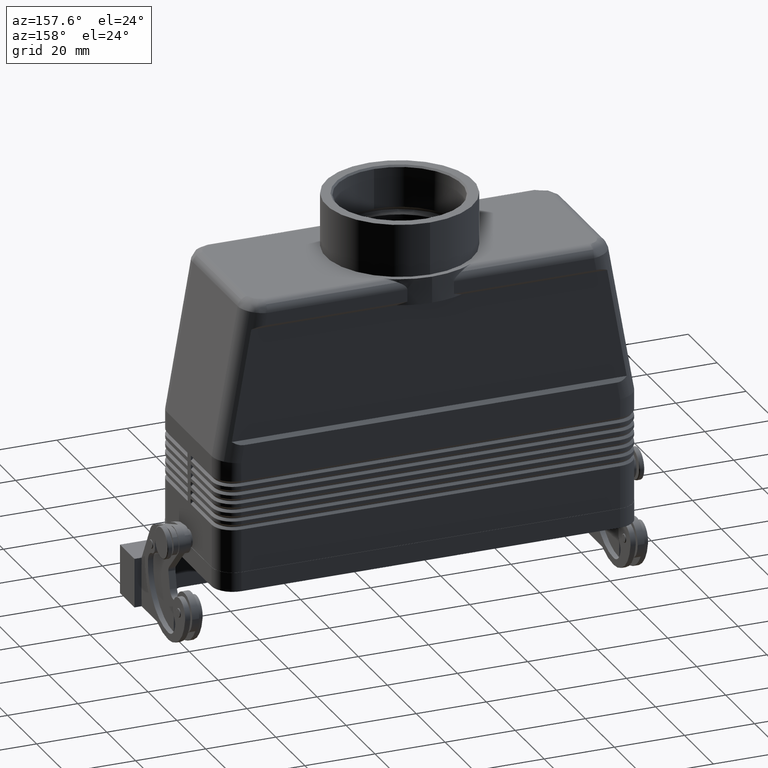
[diagram: clean part render]
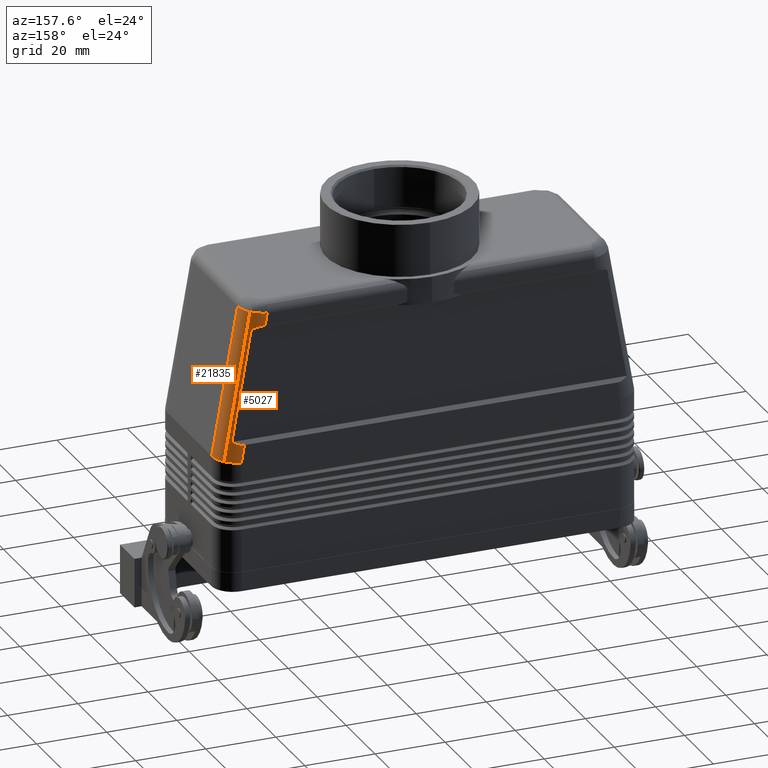
[diagram: same view with one multi-face feature highlighted, each face labeled with its STEP entity id]
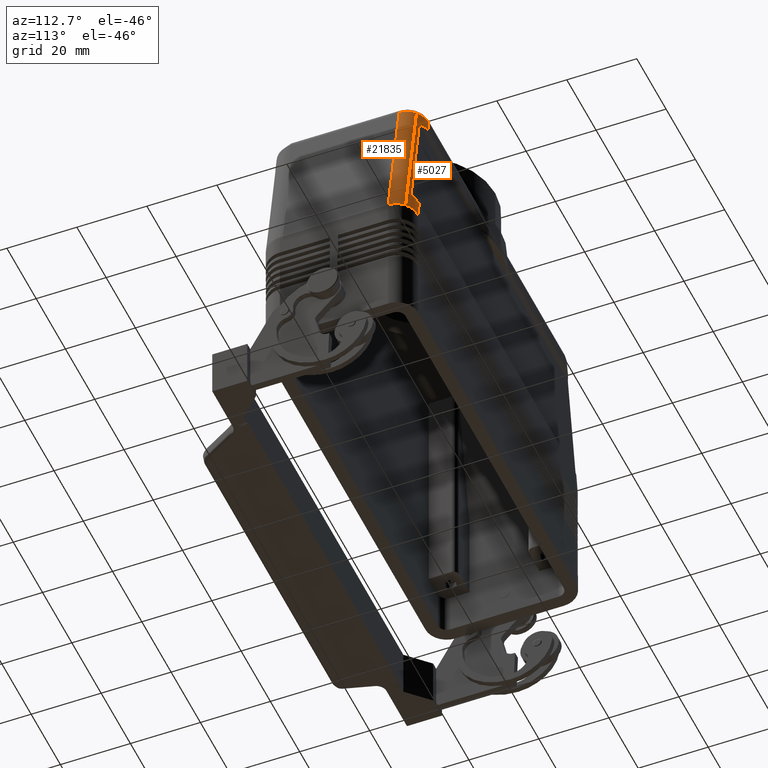
[diagram: same view with one multi-face feature highlighted, each face labeled with its STEP entity id]
A machine part, auxiliary view. The highlighted faces form ONE feature: a constant-radius fillet chain: 2 tangent blend faces with common blend radius 6 mm. The faces share edges in the B-rep.
A second angle (auxiliary view) of the same feature is appended — it is thin or edge-on in the first view.
Their STEP definitions:
[1] entity #5027 (Cylinder):
#4952=CARTESIAN_POINT('',(55.108554320930509,15.499999999999993,30.688144052492685));
#4953=DIRECTION('',(-0.173648177666930,0.0,0.984807753012208));
#4954=DIRECTION('',(0.696364240320019,0.707106781186547,0.122787803968972));
#4955=AXIS2_PLACEMENT_3D('',#4952,#4953,#4954);
#4956=CYLINDRICAL_SURFACE('',#4955,6.000000000000001);
#4957=CARTESIAN_POINT('',(58.242640687119284,19.742640687119273,37.346250982381314));
#4958=VERTEX_POINT('',#4957);
#4959=CARTESIAN_POINT('',(50.833008479429395,19.742640687119270,79.368363411906927));
#4960=VERTEX_POINT('',#4959);
#4961=CARTESIAN_POINT('',(58.242640687119284,19.742640687119273,37.346250982381314));
#4962=DIRECTION('',(-0.173648177666930,-8.325950E-017,0.984807753012208));
#4963=VECTOR('',#4962,42.670371248595046);
#4964=LINE('',#4961,#4963);
#4965=EDGE_CURVE('',#4958,#4960,#4964,.T.);
#4966=ORIENTED_EDGE('',*,*,#4965,.F.);
#4967=CARTESIAN_POINT('',(54.0,21.499999999999993,36.975068018844510));
#4968=VERTEX_POINT('',#4967);
#4969=CARTESIAN_POINT('',(54.0,15.499999999999993,36.975068018844510));
#4970=DIRECTION('',(-0.087155742747665,-4.930381E-032,0.996194698091745));
#4971=DIRECTION('',(0.996194698091745,4.331827E-015,0.087155742747665));
#4972=AXIS2_PLACEMENT_3D('',#4969,#4970,#4971);
#4973=ELLIPSE('',#4972,6.022919025260080,6.000000000000001);
#4974=EDGE_CURVE('',#4958,#4968,#4973,.T.);
#4975=ORIENTED_EDGE('',*,*,#4974,.T.);
#4976=CARTESIAN_POINT('',(53.113968915497445,21.499999999999993,42.000000000000014));
#4977=VERTEX_POINT('',#4976);
#4978=CARTESIAN_POINT('',(54.0,21.499999999999993,36.975068018844510));
#4979=DIRECTION('',(-0.173648177666930,0.0,0.984807753012208));
#4980=VECTOR('',#4979,5.102449656581058);
#4981=LINE('',#4978,#4980);
#4982=EDGE_CURVE('',#4968,#4977,#4981,.T.);
#4983=ORIENTED_EDGE('',*,*,#4982,.T.);
#4984=CARTESIAN_POINT('',(56.305431008555836,20.499999999999993,42.999999999999986));
#4985=VERTEX_POINT('',#4984);
#4986=CARTESIAN_POINT('',(52.056007031246679,15.499999999999993,47.999999999999886));
#4987=DIRECTION('',(-4.163336E-017,-0.707106781186540,-0.707106781186555));
#4988=DIRECTION('',(0.241954785752367,0.686096888803450,-0.686096888803435));
#4989=AXIS2_PLACEMENT_3D('',#4986,#4987,#4988);
#4990=ELLIPSE('',#4989,8.616180516740196,6.000000000000001);
#4991=EDGE_CURVE('',#4977,#4985,#4990,.T.);
#4992=ORIENTED_EDGE('',*,*,#4991,.T.);
#4993=CARTESIAN_POINT('',(50.751131116239200,20.500000000000000,74.500000000000014));
#4994=VERTEX_POINT('',#4993);
#4995=CARTESIAN_POINT('',(56.305431008555836,20.499999999999993,42.999999999999986));
#4996=DIRECTION('',(-0.173648177666930,2.221422E-016,0.984807753012208));
#4997=VECTOR('',#4996,31.985938274400993);
#4998=LINE('',#4995,#4997);
#4999=EDGE_CURVE('',#4985,#4994,#4998,.T.);
#5000=ORIENTED_EDGE('',*,*,#4999,.T.);
#5001=CARTESIAN_POINT('',(47.207015061763883,21.500000000000000,75.500000000000000));
#5002=VERTEX_POINT('',#5001);
#5003=CARTESIAN_POINT('',(48.264976946014649,15.499999999999993,69.500000000000142));
#5004=DIRECTION('',(2.775558E-017,-0.707106781186540,0.707106781186555));
#5005=DIRECTION('',(-0.241954785752367,0.686096888803450,0.686096888803435));
#5006=AXIS2_PLACEMENT_3D('',#5003,#5004,#5005);
#5007=ELLIPSE('',#5006,8.616180516740194,6.0);
#5008=EDGE_CURVE('',#4994,#5002,#5007,.T.);
#5009=ORIENTED_EDGE('',*,*,#5008,.T.);
#5010=CARTESIAN_POINT('',(46.589870629284256,21.499999999999993,79.0));
#5011=VERTEX_POINT('',#5010);
#5012=CARTESIAN_POINT('',(47.207015061763883,21.500000000000000,75.500000000000000));
#5013=DIRECTION('',(-0.173648177666930,-1.999280E-015,0.984807753012208));
#5014=VECTOR('',#5013,3.553993141600107);
#5015=LINE('',#5012,#5014);
#5016=EDGE_CURVE('',#5002,#5011,#5015,.T.);
#5017=ORIENTED_EDGE('',*,*,#5016,.T.);
#5018=CARTESIAN_POINT('',(46.589870629284256,15.499999999999993,79.0));
#5019=DIRECTION('',(-0.086488610095082,-2.560577E-016,0.996252839556215));
#5020=DIRECTION('',(0.996252839556215,1.474578E-015,0.086488610095082));
#5021=AXIS2_PLACEMENT_3D('',#5018,#5019,#5020);
#5022=ELLIPSE('',#5021,6.023273266018391,6.0);
#5023=EDGE_CURVE('',#4960,#5011,#5022,.T.);
#5024=ORIENTED_EDGE('',*,*,#5023,.F.);
#5025=EDGE_LOOP('',(#4966,#4975,#4983,#4992,#5000,#5009,#5017,#5024));
#5026=FACE_OUTER_BOUND('',#5025,.T.);
#5027=ADVANCED_FACE('',(#5026),#4956,.T.);
[2] entity #21835 (Cylinder):
#4957=CARTESIAN_POINT('',(58.242640687119284,19.742640687119273,37.346250982381314));
#4958=VERTEX_POINT('',#4957);
#4959=CARTESIAN_POINT('',(50.833008479429395,19.742640687119270,79.368363411906927));
#4960=VERTEX_POINT('',#4959);
#4961=CARTESIAN_POINT('',(58.242640687119284,19.742640687119273,37.346250982381314));
#4962=DIRECTION('',(-0.173648177666930,-8.325950E-017,0.984807753012208));
#4963=VECTOR('',#4962,42.670371248595046);
#4964=LINE('',#4961,#4963);
#4965=EDGE_CURVE('',#4958,#4960,#4964,.T.);
#20714=CARTESIAN_POINT('',(52.590573723978110,15.499999999999993,79.520944533000829));
#20715=VERTEX_POINT('',#20714);
#20746=CARTESIAN_POINT('',(60.0,15.500000000000000,37.500000000000000));
#20747=VERTEX_POINT('',#20746);
#20754=CARTESIAN_POINT('',(52.590573723978110,15.499999999999993,79.520944533000829));
#20755=DIRECTION('',(0.173648177666930,1.665236E-016,-0.984807753012208));
#20756=VECTOR('',#20755,42.669185335383844);
#20757=LINE('',#20754,#20756);
#20758=EDGE_CURVE('',#20715,#20747,#20757,.T.);
#21381=CARTESIAN_POINT('',(51.923177777975539,18.249999999999993,79.463005277561820));
#21382=VERTEX_POINT('',#21381);
#21383=CARTESIAN_POINT('',(46.589870629284256,15.499999999999993,79.0));
#21384=DIRECTION('',(-0.086488610095082,-2.560577E-016,0.996252839556215));
#21385=DIRECTION('',(0.996252839556215,1.474578E-015,0.086488610095082));
#21386=AXIS2_PLACEMENT_3D('',#21383,#21384,#21385);
#21387=ELLIPSE('',#21386,6.023273266018391,6.0);
#21388=EDGE_CURVE('',#21382,#4960,#21387,.T.);
#21403=CARTESIAN_POINT('',(46.589870629284256,15.499999999999993,79.0));
#21404=DIRECTION('',(-0.086488610095082,-2.560577E-016,0.996252839556215));
#21405=DIRECTION('',(0.996252839556215,1.474578E-015,0.086488610095082));
#21406=AXIS2_PLACEMENT_3D('',#21403,#21404,#21405);
#21407=ELLIPSE('',#21406,6.023273266018391,6.0);
#21408=EDGE_CURVE('',#20715,#21382,#21407,.T.);
#21817=CARTESIAN_POINT('',(55.108554320930509,15.499999999999993,30.688144052492685));
#21818=DIRECTION('',(-0.173648177666930,0.0,0.984807753012208));
#21819=DIRECTION('',(0.696364240320019,0.707106781186547,0.122787803968972));
#21820=AXIS2_PLACEMENT_3D('',#21817,#21818,#21819);
#21821=CYLINDRICAL_SURFACE('',#21820,6.000000000000001);
#21822=ORIENTED_EDGE('',*,*,#4965,.T.);
#21823=ORIENTED_EDGE('',*,*,#21388,.F.);
#21824=ORIENTED_EDGE('',*,*,#21408,.F.);
#21825=ORIENTED_EDGE('',*,*,#20758,.T.);
#21826=CARTESIAN_POINT('',(54.0,15.499999999999993,36.975068018844510));
#21827=DIRECTION('',(-0.087155742747665,-4.930381E-032,0.996194698091745));
#21828=DIRECTION('',(0.996194698091745,4.331827E-015,0.087155742747665));
#21829=AXIS2_PLACEMENT_3D('',#21826,#21827,#21828);
#21830=ELLIPSE('',#21829,6.022919025260080,6.000000000000001);
#21831=EDGE_CURVE('',#20747,#4958,#21830,.T.);
#21832=ORIENTED_EDGE('',*,*,#21831,.T.);
#21833=EDGE_LOOP('',(#21822,#21823,#21824,#21825,#21832));
#21834=FACE_OUTER_BOUND('',#21833,.T.);
#21835=ADVANCED_FACE('',(#21834),#21821,.T.);